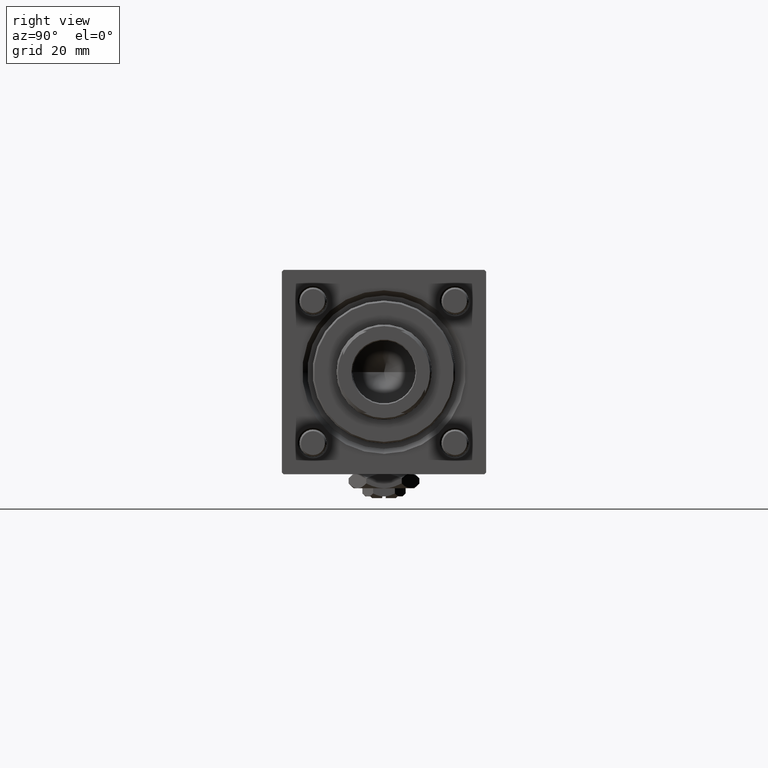
[diagram: clean part render]
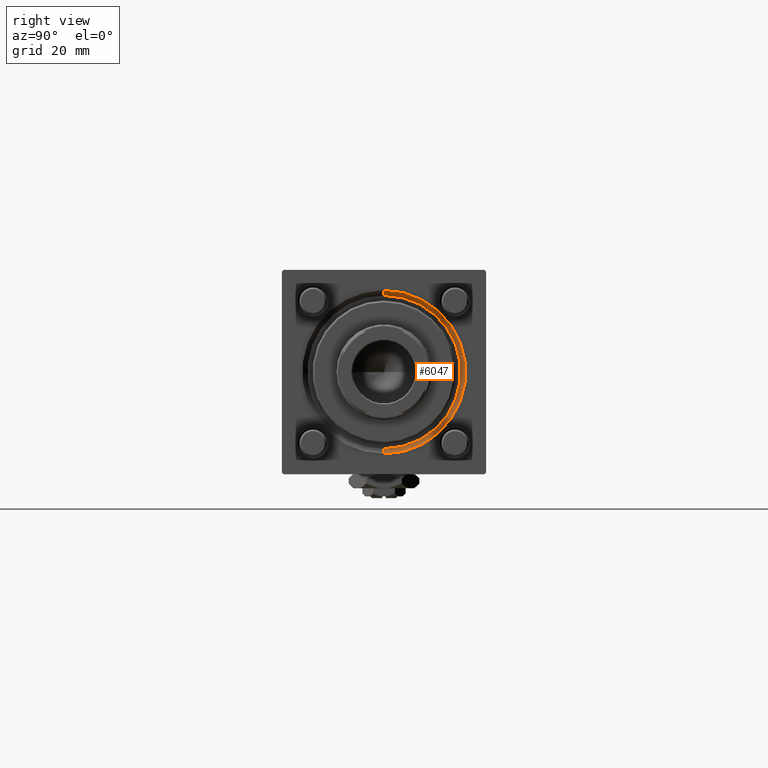
[diagram: same view with one face highlighted and labeled with its STEP entity id]
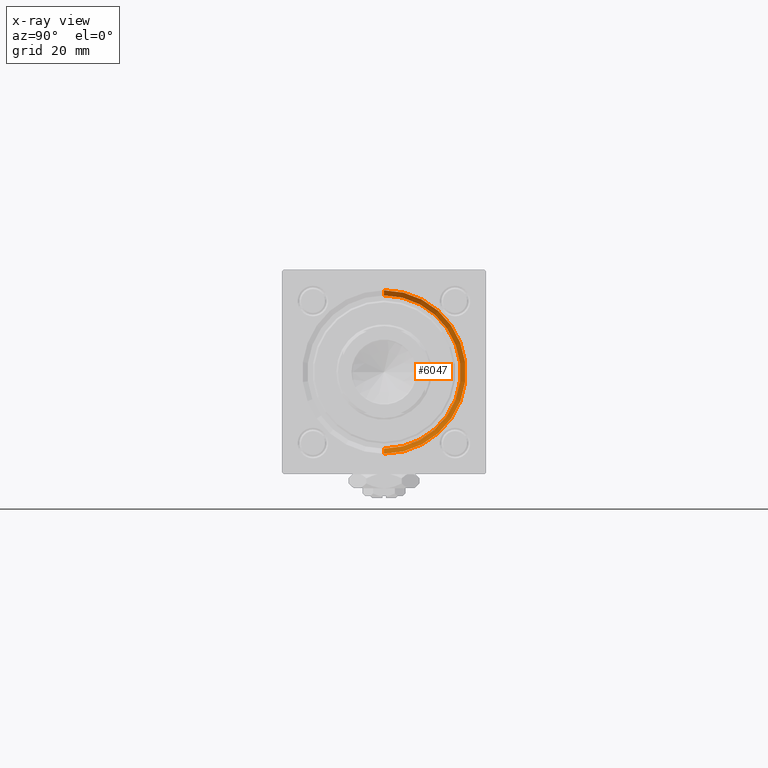
[diagram: x-ray of the same camera — body ghosted, the highlighted face saturated]
A machine part, right view. The second image highlights one B-rep face of the part: STEP entity #6047.
The next image is the same camera in x-ray: the body ghosted, the highlighted face saturated — about 0% of this face is hidden behind the body in this view.
In plain terms, the highlighted conical surface has half-angle 45 deg.
Its self-contained STEP definition (entity closure, byte-faithful):
#817 = VECTOR ( 'NONE', #37966, 1000.000000000000000 ) ;
#1798 = LINE ( 'NONE', #19843, #18932 ) ;
#2320 = DIRECTION ( 'NONE',  ( 0.000000000000000000, 0.000000000000000000, -1.000000000000000000 ) ) ;
#3654 = DIRECTION ( 'NONE',  ( 0.000000000000000000, 0.000000000000000000, 1.000000000000000000 ) ) ;
#4630 = CARTESIAN_POINT ( 'NONE',  ( 146.4999999999999432, 2.755455298081545172E-15, 22.50000000000000355 ) ) ;
#6047 = ADVANCED_FACE ( 'NONE', ( #26005 ), #23013, .F. ) ;
#6253 = CARTESIAN_POINT ( 'NONE',  ( 146.4999999999999432, 0.000000000000000000, 0.000000000000000000 ) ) ;
#9182 = EDGE_CURVE ( 'NONE', #27906, #32616, #1798, .T. ) ;
#10991 = DIRECTION ( 'NONE',  ( 0.000000000000000000, 0.000000000000000000, 1.000000000000000000 ) ) ;
#14776 = CARTESIAN_POINT ( 'NONE',  ( 146.4999999999999432, 0.000000000000000000, -22.50000000000000355 ) ) ;
#14889 = LINE ( 'NONE', #46538, #817 ) ;
#18062 = EDGE_LOOP ( 'NONE', ( #26595, #42494, #22176, #22433 ) ) ;
#18932 = VECTOR ( 'NONE', #56531, 1000.000000000000000 ) ;
#19843 = CARTESIAN_POINT ( 'NONE',  ( 146.4999999999999432, 0.000000000000000000, -22.50000000000000355 ) ) ;
#20661 = EDGE_CURVE ( 'NONE', #30785, #32616, #39288, .T. ) ;
#22176 = ORIENTED_EDGE ( 'NONE', *, *, #9182, .T. ) ;
#22433 = ORIENTED_EDGE ( 'NONE', *, *, #20661, .F. ) ;
#23013 = CONICAL_SURFACE ( 'NONE', #56055, 22.50000000000000355, 0.7853981633974415066 ) ;
#24437 = CARTESIAN_POINT ( 'NONE',  ( 148.0000000000000000, 2.939152317953652628E-15, 24.00000000000003908 ) ) ;
#25707 = CARTESIAN_POINT ( 'NONE',  ( 146.4999999999999432, 0.000000000000000000, 0.000000000000000000 ) ) ;
#26005 = FACE_OUTER_BOUND ( 'NONE', #18062, .T. ) ;
#26595 = ORIENTED_EDGE ( 'NONE', *, *, #35078, .F. ) ;
#27906 = VERTEX_POINT ( 'NONE', #14776 ) ;
#30088 = EDGE_CURVE ( 'NONE', #27906, #38665, #43194, .T. ) ;
#30785 = VERTEX_POINT ( 'NONE', #24437 ) ;
#30875 = CARTESIAN_POINT ( 'NONE',  ( 148.0000000000000000, 0.000000000000000000, 0.000000000000000000 ) ) ;
#32616 = VERTEX_POINT ( 'NONE', #41053 ) ;
#35078 = EDGE_CURVE ( 'NONE', #38665, #30785, #14889, .T. ) ;
#37966 = DIRECTION ( 'NONE',  ( 0.7071067811865524577, 8.659560562354874926E-17, 0.7071067811865426878 ) ) ;
#38665 = VERTEX_POINT ( 'NONE', #4630 ) ;
#39288 = CIRCLE ( 'NONE', #57230, 24.00000000000003908 ) ;
#40399 = AXIS2_PLACEMENT_3D ( 'NONE', #6253, #55964, #10991 ) ;
#41053 = CARTESIAN_POINT ( 'NONE',  ( 148.0000000000000000, 0.000000000000000000, -24.00000000000003908 ) ) ;
#42494 = ORIENTED_EDGE ( 'NONE', *, *, #30088, .F. ) ;
#43194 = CIRCLE ( 'NONE', #40399, 22.50000000000000355 ) ;
#43311 = DIRECTION ( 'NONE',  ( -1.000000000000000000, 0.000000000000000000, -0.000000000000000000 ) ) ;
#44047 = DIRECTION ( 'NONE',  ( 1.000000000000000000, 0.000000000000000000, 0.000000000000000000 ) ) ;
#46538 = CARTESIAN_POINT ( 'NONE',  ( 146.4999999999999432, 2.755455298081545172E-15, 22.50000000000000355 ) ) ;
#55964 = DIRECTION ( 'NONE',  ( 1.000000000000000000, 0.000000000000000000, 0.000000000000000000 ) ) ;
#56055 = AXIS2_PLACEMENT_3D ( 'NONE', #25707, #44047, #2320 ) ;
#56531 = DIRECTION ( 'NONE',  ( 0.7071067811865524577, 0.000000000000000000, -0.7071067811865426878 ) ) ;
#57230 = AXIS2_PLACEMENT_3D ( 'NONE', #30875, #43311, #3654 ) ;